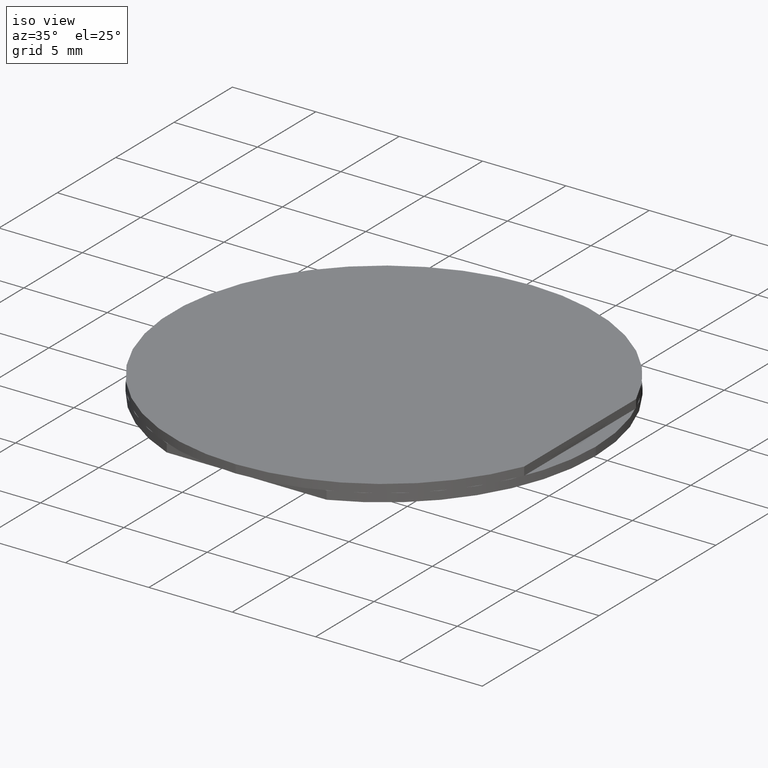
[diagram: clean part render]
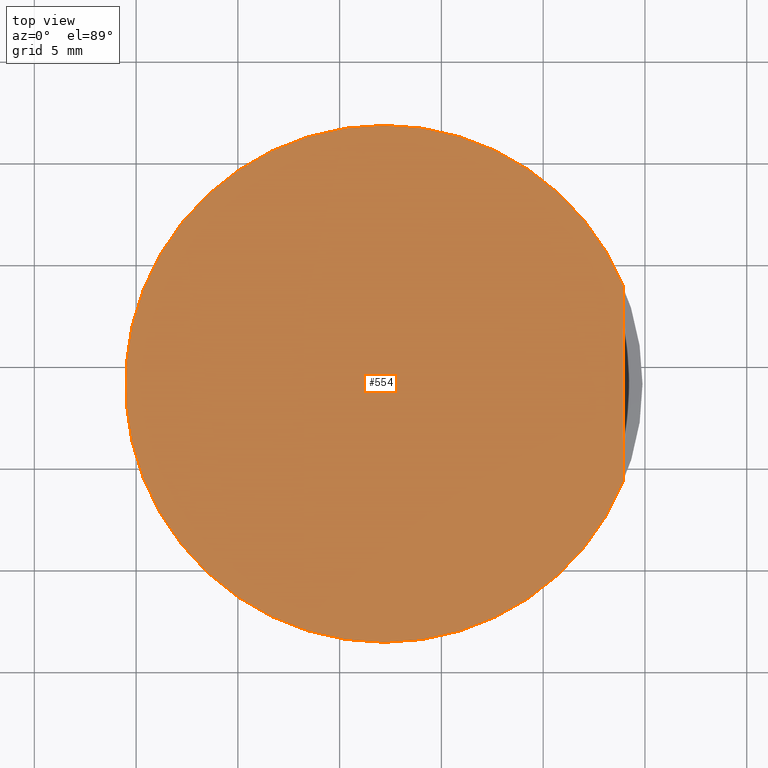
[diagram: tour spotlight — one face highlighted and labeled with its STEP entity id]
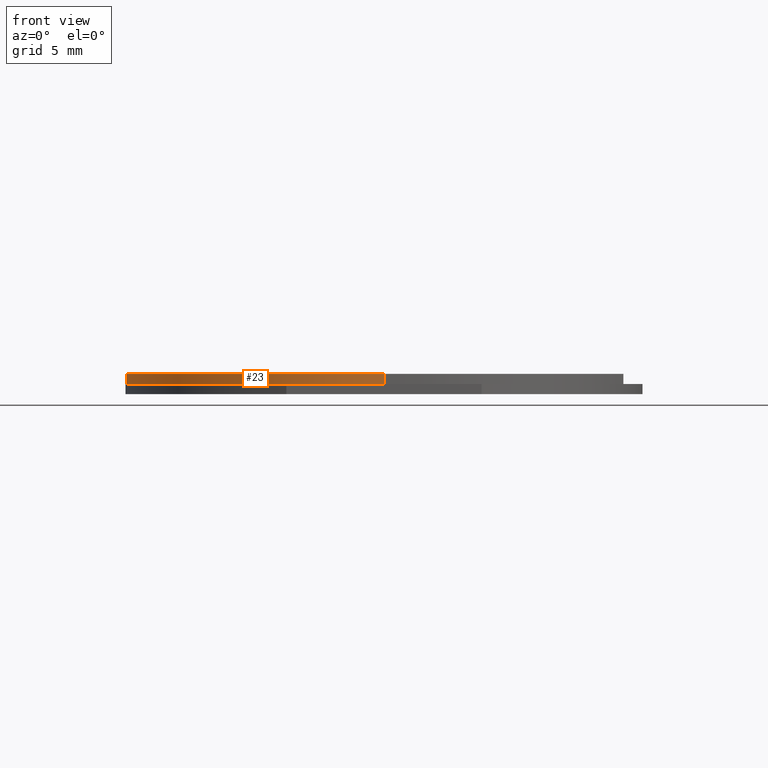
[diagram: tour spotlight — one face highlighted and labeled with its STEP entity id]
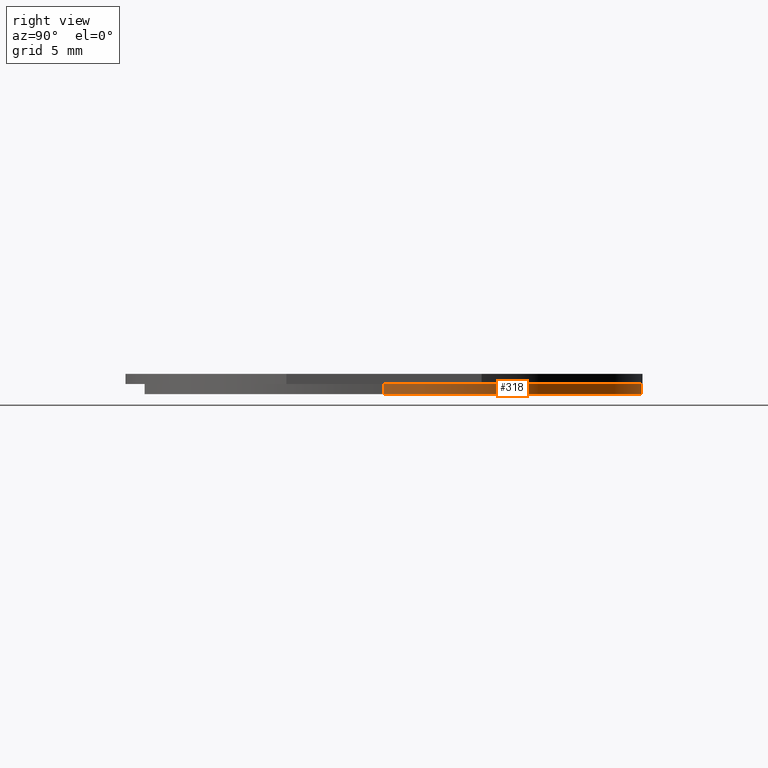
[diagram: tour spotlight — one face highlighted and labeled with its STEP entity id]
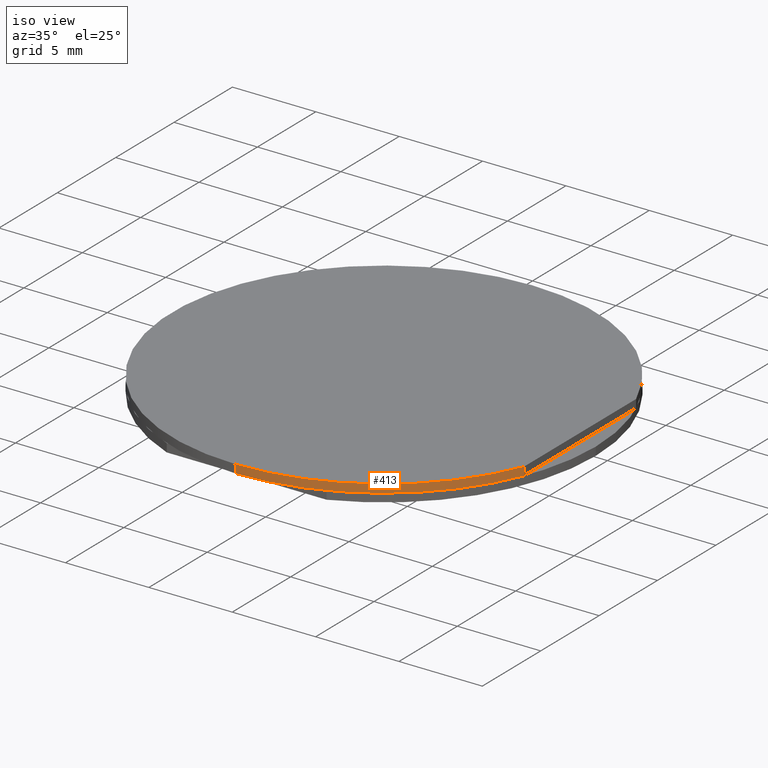
[diagram: tour spotlight — one face highlighted and labeled with its STEP entity id]
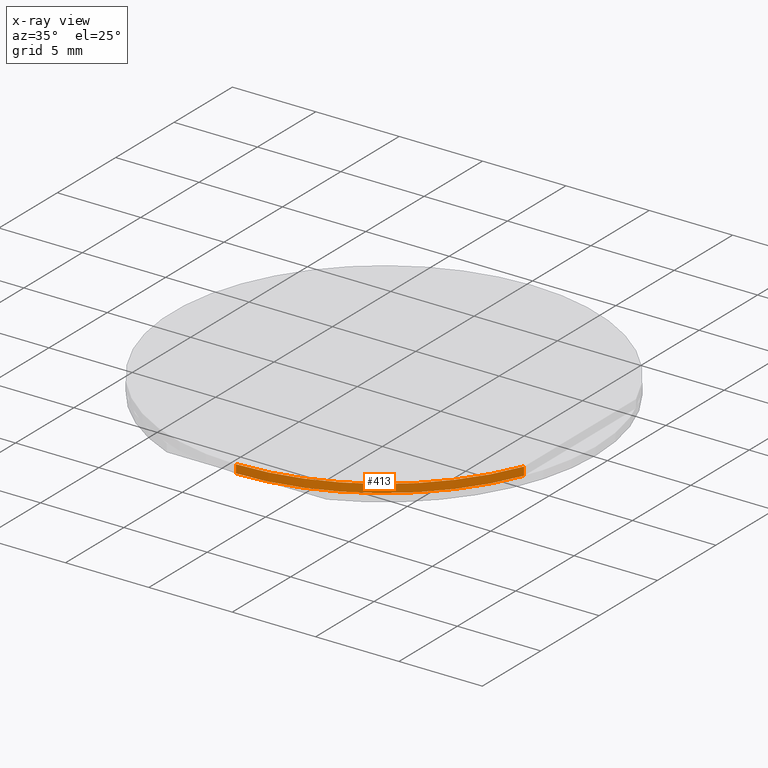
[diagram: x-ray of the same camera — body ghosted, this tour face saturated]
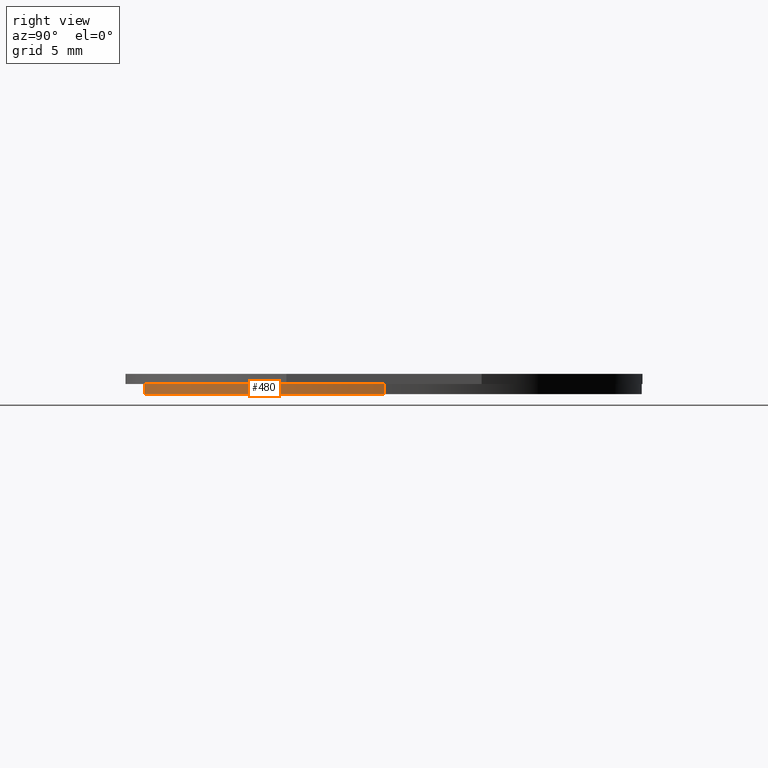
[diagram: tour spotlight — one face highlighted and labeled with its STEP entity id]
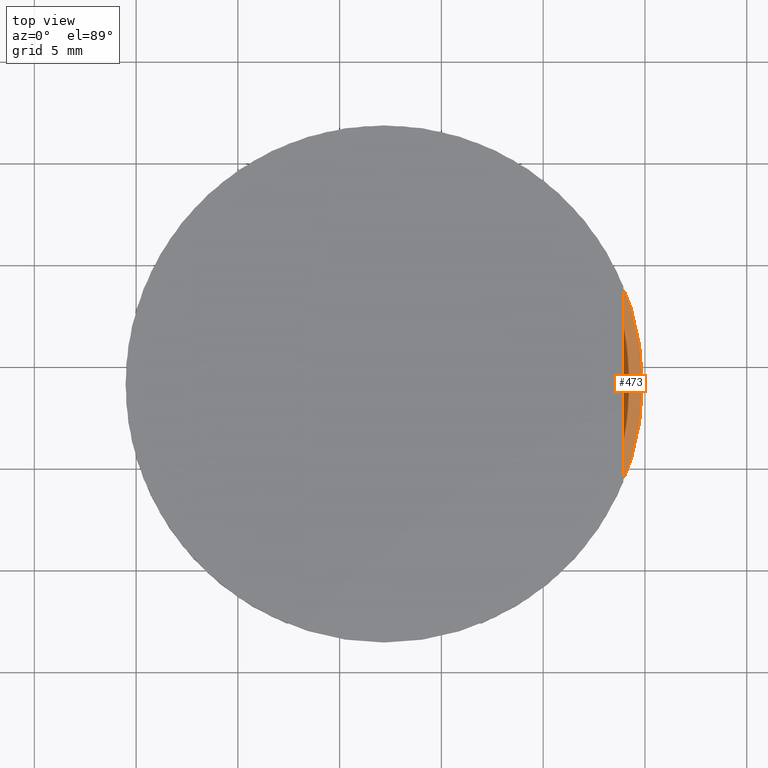
[diagram: tour spotlight — one face highlighted and labeled with its STEP entity id]
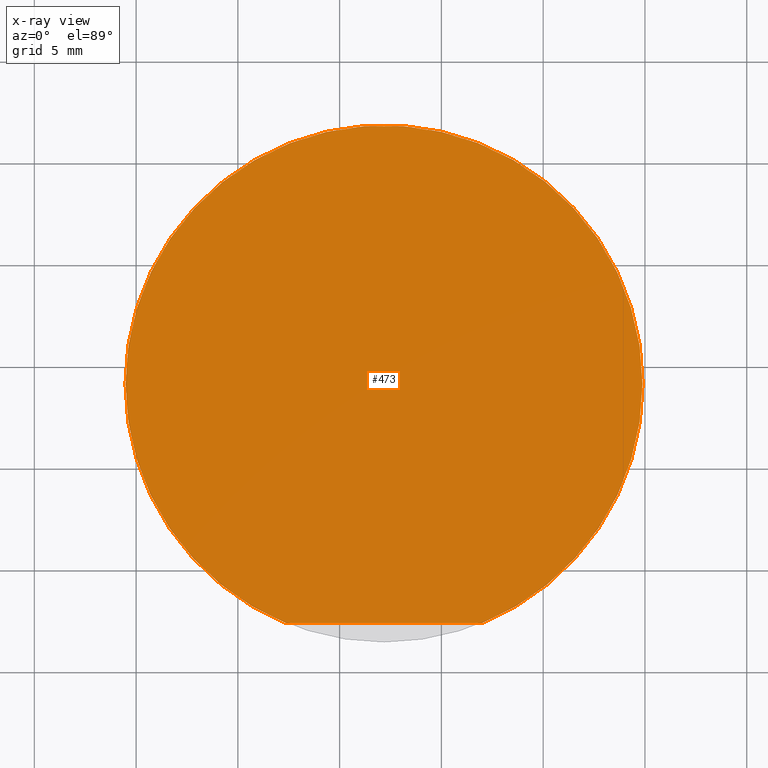
[diagram: x-ray of the same camera — body ghosted, this tour face saturated]
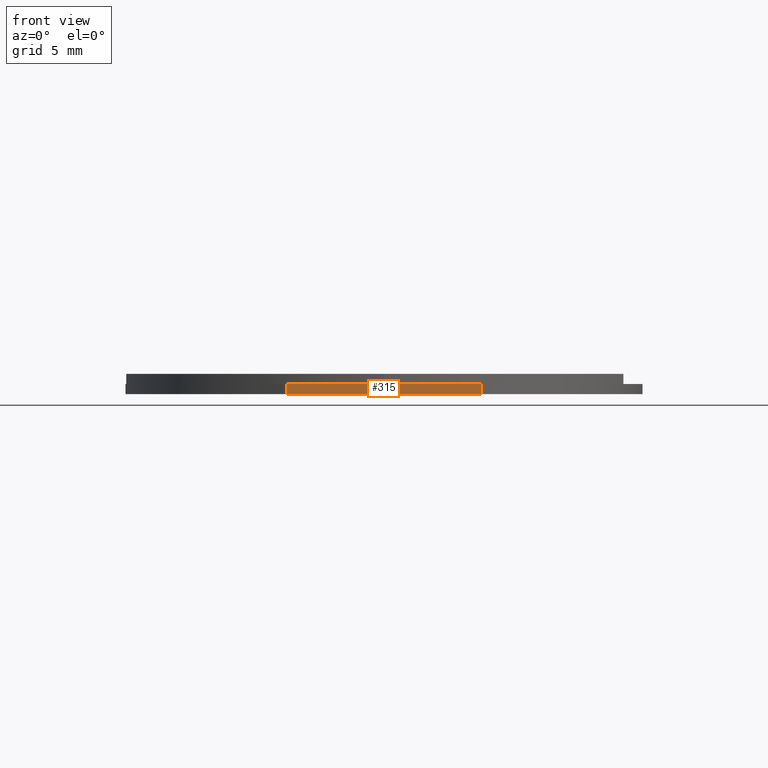
[diagram: tour spotlight — one face highlighted and labeled with its STEP entity id]
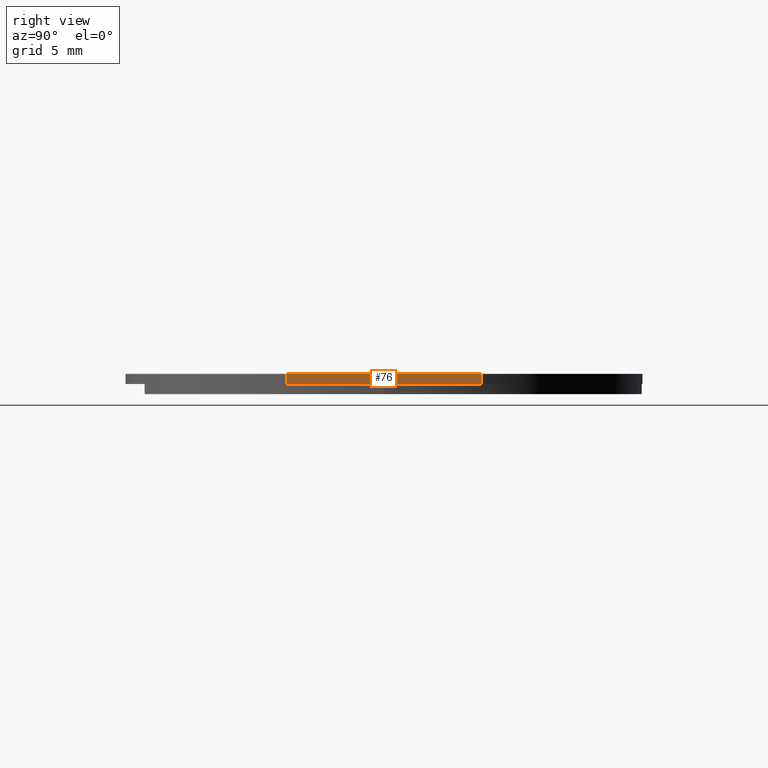
[diagram: tour spotlight — one face highlighted and labeled with its STEP entity id]
A machine part: a face-by-face anatomy tour. The part has 12 B-rep faces; the first image is the clean iso view, then the 8 largest visible faces are spotlighted one at a time (largest first), each with its STEP entity span.

Face 1 — top view, entity #554. In plain terms, the highlighted planar face has unit normal (0, -0, 1).
Definition (entity closure, byte-faithful):
#3 = VERTEX_POINT ( 'NONE', #303 ) ;
#17 = CARTESIAN_POINT ( 'NONE',  ( 12.17957565082418014, -0.8299026143560144231, 4.486184743181586221 ) ) ;
#18 = CARTESIAN_POINT ( 'NONE',  ( 12.17957565082418014, -0.8299026143560144231, 4.486184743181586221 ) ) ;
#20 = DIRECTION ( 'NONE',  ( 0.0000000000000000000, 0.0000000000000000000, 1.000000000000000000 ) ) ;
#33 = EDGE_CURVE ( 'NONE', #172, #124, #177, .T. ) ;
#61 = DIRECTION ( 'NONE',  ( 0.0000000000000000000, 0.0000000000000000000, 1.000000000000000000 ) ) ;
#89 = DIRECTION ( 'NONE',  ( 1.110223024625156294E-16, 1.000000000000000000, 0.0000000000000000000 ) ) ;
#124 = VERTEX_POINT ( 'NONE', #195 ) ;
#172 = VERTEX_POINT ( 'NONE', #433 ) ;
#177 = LINE ( 'NONE', #346, #487 ) ;
#178 = EDGE_CURVE ( 'NONE', #334, #124, #427, .T. ) ;
#187 = DIRECTION ( 'NONE',  ( 1.365923996832131609E-16, 1.000000000000000000, 0.0000000000000000000 ) ) ;
#195 = CARTESIAN_POINT ( 'NONE',  ( 23.93957565082418171, -5.624941717429107868, 4.486184743181586221 ) ) ;
#201 = AXIS2_PLACEMENT_3D ( 'NONE', #18, #61, #327 ) ;
#213 = DIRECTION ( 'NONE',  ( 0.0000000000000000000, -0.0000000000000000000, 1.000000000000000000 ) ) ;
#218 = EDGE_CURVE ( 'NONE', #172, #3, #513, .T. ) ;
#219 = CIRCLE ( 'NONE', #527, 12.69999999999999929 ) ;
#228 = AXIS2_PLACEMENT_3D ( 'NONE', #535, #436, #321 ) ;
#229 = CARTESIAN_POINT ( 'NONE',  ( 12.17957565082417837, -13.52990261435601305, 4.486184743181586221 ) ) ;
#252 = PLANE ( 'NONE',  #511 ) ;
#253 = ORIENTED_EDGE ( 'NONE', *, *, #369, .T. ) ;
#296 = CARTESIAN_POINT ( 'NONE',  ( 12.17957565082418014, -0.8299026143560144231, 4.486184743181586221 ) ) ;
#303 = CARTESIAN_POINT ( 'NONE',  ( 12.17957565082418014, 11.87009738564398553, 4.486184743181586221 ) ) ;
#321 = DIRECTION ( 'NONE',  ( 1.365923996832131609E-16, 1.000000000000000000, 0.0000000000000000000 ) ) ;
#327 = DIRECTION ( 'NONE',  ( 1.365923996832131609E-16, 1.000000000000000000, 0.0000000000000000000 ) ) ;
#334 = VERTEX_POINT ( 'NONE', #229 ) ;
#346 = CARTESIAN_POINT ( 'NONE',  ( 23.93957565082418171, -6.717240688047030339, 4.486184743181586221 ) ) ;
#369 = EDGE_CURVE ( 'NONE', #3, #334, #219, .T. ) ;
#370 = EDGE_LOOP ( 'NONE', ( #381, #378, #253, #407 ) ) ;
#378 = ORIENTED_EDGE ( 'NONE', *, *, #218, .T. ) ;
#379 = FACE_OUTER_BOUND ( 'NONE', #370, .T. ) ;
#381 = ORIENTED_EDGE ( 'NONE', *, *, #33, .F. ) ;
#386 = DIRECTION ( 'NONE',  ( -1.110223024625156294E-16, -1.000000000000000000, -0.0000000000000000000 ) ) ;
#407 = ORIENTED_EDGE ( 'NONE', *, *, #178, .T. ) ;
#427 = CIRCLE ( 'NONE', #201, 12.69999999999999929 ) ;
#433 = CARTESIAN_POINT ( 'NONE',  ( 23.93957565082418171, 3.965136488717076357, 4.486184743181586221 ) ) ;
#436 = DIRECTION ( 'NONE',  ( 0.0000000000000000000, 0.0000000000000000000, 1.000000000000000000 ) ) ;
#487 = VECTOR ( 'NONE', #386, 1000.000000000000000 ) ;
#511 = AXIS2_PLACEMENT_3D ( 'NONE', #296, #213, #89 ) ;
#513 = CIRCLE ( 'NONE', #228, 12.69999999999999929 ) ;
#527 = AXIS2_PLACEMENT_3D ( 'NONE', #17, #20, #187 ) ;
#535 = CARTESIAN_POINT ( 'NONE',  ( 12.17957565082418014, -0.8299026143560144231, 4.486184743181586221 ) ) ;
#554 = ADVANCED_FACE ( 'NONE', ( #379 ), #252, .T. ) ;

Face 2 — front view, entity #23. In plain terms, the highlighted cylindrical surface (partial cylindrical patch) has radius 12.7 mm, axis along (0, -0, -1).
Definition (entity closure, byte-faithful):
#3 = VERTEX_POINT ( 'NONE', #303 ) ;
#17 = CARTESIAN_POINT ( 'NONE',  ( 12.17957565082418014, -0.8299026143560144231, 4.486184743181586221 ) ) ;
#20 = DIRECTION ( 'NONE',  ( 0.0000000000000000000, 0.0000000000000000000, 1.000000000000000000 ) ) ;
#23 = ADVANCED_FACE ( 'NONE', ( #385 ), #222, .T. ) ;
#24 = DIRECTION ( 'NONE',  ( 0.0000000000000000000, -0.0000000000000000000, -1.000000000000000000 ) ) ;
#30 = DIRECTION ( 'NONE',  ( 0.0000000000000000000, 0.0000000000000000000, 1.000000000000000000 ) ) ;
#37 = VERTEX_POINT ( 'NONE', #345 ) ;
#88 = ORIENTED_EDGE ( 'NONE', *, *, #369, .F. ) ;
#95 = DIRECTION ( 'NONE',  ( 0.0000000000000000000, -0.0000000000000000000, -1.000000000000000000 ) ) ;
#118 = CARTESIAN_POINT ( 'NONE',  ( 12.17957565082418014, 11.87009738564398553, 4.486184743181586221 ) ) ;
#187 = DIRECTION ( 'NONE',  ( 1.365923996832131609E-16, 1.000000000000000000, 0.0000000000000000000 ) ) ;
#215 = VERTEX_POINT ( 'NONE', #360 ) ;
#219 = CIRCLE ( 'NONE', #527, 12.69999999999999929 ) ;
#222 = CYLINDRICAL_SURFACE ( 'NONE', #342, 12.69999999999999929 ) ;
#224 = DIRECTION ( 'NONE',  ( -1.365923996832131609E-16, -1.000000000000000000, 0.0000000000000000000 ) ) ;
#229 = CARTESIAN_POINT ( 'NONE',  ( 12.17957565082417837, -13.52990261435601305, 4.486184743181586221 ) ) ;
#230 = LINE ( 'NONE', #311, #438 ) ;
#244 = ORIENTED_EDGE ( 'NONE', *, *, #277, .T. ) ;
#256 = ORIENTED_EDGE ( 'NONE', *, *, #518, .T. ) ;
#269 = VECTOR ( 'NONE', #24, 1000.000000000000000 ) ;
#277 = EDGE_CURVE ( 'NONE', #3, #215, #493, .T. ) ;
#289 = CIRCLE ( 'NONE', #486, 12.69999999999999929 ) ;
#303 = CARTESIAN_POINT ( 'NONE',  ( 12.17957565082418014, 11.87009738564398553, 4.486184743181586221 ) ) ;
#305 = CARTESIAN_POINT ( 'NONE',  ( 12.17957565082418014, -0.8299026143560144231, 4.486184743181586221 ) ) ;
#311 = CARTESIAN_POINT ( 'NONE',  ( 12.17957565082417837, -13.52990261435601305, 4.486184743181586221 ) ) ;
#314 = DIRECTION ( 'NONE',  ( 0.0000000000000000000, -0.0000000000000000000, -1.000000000000000000 ) ) ;
#334 = VERTEX_POINT ( 'NONE', #229 ) ;
#342 = AXIS2_PLACEMENT_3D ( 'NONE', #305, #95, #224 ) ;
#345 = CARTESIAN_POINT ( 'NONE',  ( 12.17957565082417837, -13.52990261435601305, 3.986184743181585777 ) ) ;
#351 = EDGE_CURVE ( 'NONE', #334, #37, #230, .T. ) ;
#357 = DIRECTION ( 'NONE',  ( 1.365923996832131609E-16, 1.000000000000000000, 0.0000000000000000000 ) ) ;
#360 = CARTESIAN_POINT ( 'NONE',  ( 12.17957565082418014, 11.87009738564398553, 3.986184743181585777 ) ) ;
#369 = EDGE_CURVE ( 'NONE', #3, #334, #219, .T. ) ;
#385 = FACE_OUTER_BOUND ( 'NONE', #504, .T. ) ;
#438 = VECTOR ( 'NONE', #314, 1000.000000000000000 ) ;
#486 = AXIS2_PLACEMENT_3D ( 'NONE', #557, #30, #357 ) ;
#493 = LINE ( 'NONE', #118, #269 ) ;
#504 = EDGE_LOOP ( 'NONE', ( #88, #244, #256, #555 ) ) ;
#518 = EDGE_CURVE ( 'NONE', #215, #37, #289, .T. ) ;
#527 = AXIS2_PLACEMENT_3D ( 'NONE', #17, #20, #187 ) ;
#555 = ORIENTED_EDGE ( 'NONE', *, *, #351, .F. ) ;
#557 = CARTESIAN_POINT ( 'NONE',  ( 12.17957565082418014, -0.8299026143560144231, 3.986184743181585777 ) ) ;

Face 3 — right view, entity #318. In plain terms, the highlighted cylindrical surface (partial cylindrical patch) has radius 12.7 mm, axis along (-0, -0, -1).
Definition (entity closure, byte-faithful):
#21 = CARTESIAN_POINT ( 'NONE',  ( 24.87957565082417943, -0.8299026143560128688, 3.986184743181585777 ) ) ;
#55 = CIRCLE ( 'NONE', #543, 12.69999999999999929 ) ;
#58 = DIRECTION ( 'NONE',  ( -0.0000000000000000000, -0.0000000000000000000, -1.000000000000000000 ) ) ;
#59 = VECTOR ( 'NONE', #544, 1000.000000000000000 ) ;
#70 = DIRECTION ( 'NONE',  ( 0.0000000000000000000, 0.0000000000000000000, 1.000000000000000000 ) ) ;
#72 = CIRCLE ( 'NONE', #144, 12.69999999999999929 ) ;
#110 = DIRECTION ( 'NONE',  ( -1.000000000000000000, 0.0000000000000000000, 0.0000000000000000000 ) ) ;
#121 = EDGE_LOOP ( 'NONE', ( #137, #419, #243, #546 ) ) ;
#137 = ORIENTED_EDGE ( 'NONE', *, *, #322, .F. ) ;
#144 = AXIS2_PLACEMENT_3D ( 'NONE', #395, #538, #196 ) ;
#145 = CARTESIAN_POINT ( 'NONE',  ( 12.17957565082418014, -0.8299026143560144231, 3.986184743181585777 ) ) ;
#170 = CARTESIAN_POINT ( 'NONE',  ( -0.5204243491758187012, -0.8299026143560144231, 3.986184743181585777 ) ) ;
#194 = DIRECTION ( 'NONE',  ( -0.0000000000000000000, -0.0000000000000000000, -1.000000000000000000 ) ) ;
#196 = DIRECTION ( 'NONE',  ( 1.000000000000000000, 0.0000000000000000000, 0.0000000000000000000 ) ) ;
#203 = LINE ( 'NONE', #21, #59 ) ;
#226 = EDGE_CURVE ( 'NONE', #500, #295, #55, .T. ) ;
#243 = ORIENTED_EDGE ( 'NONE', *, *, #226, .T. ) ;
#268 = CARTESIAN_POINT ( 'NONE',  ( 24.87957565082417943, -0.8299026143560128688, 3.986184743181585777 ) ) ;
#283 = VECTOR ( 'NONE', #194, 1000.000000000000000 ) ;
#286 = CARTESIAN_POINT ( 'NONE',  ( 24.87957565082417943, -0.8299026143560128688, 3.486184743181585333 ) ) ;
#295 = VERTEX_POINT ( 'NONE', #333 ) ;
#318 = ADVANCED_FACE ( 'NONE', ( #548 ), #329, .T. ) ;
#322 = EDGE_CURVE ( 'NONE', #383, #551, #72, .T. ) ;
#329 = CYLINDRICAL_SURFACE ( 'NONE', #382, 12.69999999999999929 ) ;
#333 = CARTESIAN_POINT ( 'NONE',  ( -0.5204243491758187012, -0.8299026143560144231, 3.486184743181585333 ) ) ;
#382 = AXIS2_PLACEMENT_3D ( 'NONE', #145, #58, #110 ) ;
#383 = VERTEX_POINT ( 'NONE', #268 ) ;
#395 = CARTESIAN_POINT ( 'NONE',  ( 12.17957565082418014, -0.8299026143560144231, 3.986184743181585777 ) ) ;
#401 = DIRECTION ( 'NONE',  ( 1.000000000000000000, 0.0000000000000000000, 0.0000000000000000000 ) ) ;
#402 = EDGE_CURVE ( 'NONE', #551, #295, #488, .T. ) ;
#419 = ORIENTED_EDGE ( 'NONE', *, *, #450, .T. ) ;
#450 = EDGE_CURVE ( 'NONE', #383, #500, #203, .T. ) ;
#479 = CARTESIAN_POINT ( 'NONE',  ( -0.5204243491758187012, -0.8299026143560144231, 3.986184743181585777 ) ) ;
#485 = CARTESIAN_POINT ( 'NONE',  ( 12.17957565082418014, -0.8299026143560144231, 3.486184743181585333 ) ) ;
#488 = LINE ( 'NONE', #479, #283 ) ;
#500 = VERTEX_POINT ( 'NONE', #286 ) ;
#538 = DIRECTION ( 'NONE',  ( 0.0000000000000000000, 0.0000000000000000000, 1.000000000000000000 ) ) ;
#543 = AXIS2_PLACEMENT_3D ( 'NONE', #485, #70, #401 ) ;
#544 = DIRECTION ( 'NONE',  ( -0.0000000000000000000, -0.0000000000000000000, -1.000000000000000000 ) ) ;
#546 = ORIENTED_EDGE ( 'NONE', *, *, #402, .F. ) ;
#548 = FACE_OUTER_BOUND ( 'NONE', #121, .T. ) ;
#551 = VERTEX_POINT ( 'NONE', #170 ) ;

Face 4 — iso view, entity #413. An x-ray twin of the same camera follows (body ghosted, this face saturated) — the face is partly hidden behind the body. In plain terms, the highlighted cylindrical surface (partial cylindrical patch) has radius 12.7 mm, axis along (0, -0, -1).
Definition (entity closure, byte-faithful):
#18 = CARTESIAN_POINT ( 'NONE',  ( 12.17957565082418014, -0.8299026143560144231, 4.486184743181586221 ) ) ;
#25 = CYLINDRICAL_SURFACE ( 'NONE', #237, 12.69999999999999929 ) ;
#26 = CARTESIAN_POINT ( 'NONE',  ( 12.17957565082418014, -0.8299026143560144231, 3.986184743181585777 ) ) ;
#34 = ORIENTED_EDGE ( 'NONE', *, *, #255, .T. ) ;
#37 = VERTEX_POINT ( 'NONE', #345 ) ;
#61 = DIRECTION ( 'NONE',  ( 0.0000000000000000000, 0.0000000000000000000, 1.000000000000000000 ) ) ;
#82 = CARTESIAN_POINT ( 'NONE',  ( 23.93957565082418171, -5.624941717429107868, 4.486184743181586221 ) ) ;
#124 = VERTEX_POINT ( 'NONE', #195 ) ;
#125 = EDGE_LOOP ( 'NONE', ( #411, #174, #34, #373 ) ) ;
#157 = DIRECTION ( 'NONE',  ( 1.365923996832131609E-16, 1.000000000000000000, 0.0000000000000000000 ) ) ;
#174 = ORIENTED_EDGE ( 'NONE', *, *, #351, .T. ) ;
#178 = EDGE_CURVE ( 'NONE', #334, #124, #427, .T. ) ;
#191 = FACE_OUTER_BOUND ( 'NONE', #125, .T. ) ;
#195 = CARTESIAN_POINT ( 'NONE',  ( 23.93957565082418171, -5.624941717429107868, 4.486184743181586221 ) ) ;
#198 = DIRECTION ( 'NONE',  ( -1.365923996832131609E-16, -1.000000000000000000, 0.0000000000000000000 ) ) ;
#201 = AXIS2_PLACEMENT_3D ( 'NONE', #18, #61, #327 ) ;
#229 = CARTESIAN_POINT ( 'NONE',  ( 12.17957565082417837, -13.52990261435601305, 4.486184743181586221 ) ) ;
#230 = LINE ( 'NONE', #311, #438 ) ;
#237 = AXIS2_PLACEMENT_3D ( 'NONE', #276, #284, #198 ) ;
#255 = EDGE_CURVE ( 'NONE', #37, #461, #514, .T. ) ;
#276 = CARTESIAN_POINT ( 'NONE',  ( 12.17957565082418014, -0.8299026143560144231, 4.486184743181586221 ) ) ;
#284 = DIRECTION ( 'NONE',  ( 0.0000000000000000000, -0.0000000000000000000, -1.000000000000000000 ) ) ;
#310 = EDGE_CURVE ( 'NONE', #461, #124, #336, .T. ) ;
#311 = CARTESIAN_POINT ( 'NONE',  ( 12.17957565082417837, -13.52990261435601305, 4.486184743181586221 ) ) ;
#314 = DIRECTION ( 'NONE',  ( 0.0000000000000000000, -0.0000000000000000000, -1.000000000000000000 ) ) ;
#327 = DIRECTION ( 'NONE',  ( 1.365923996832131609E-16, 1.000000000000000000, 0.0000000000000000000 ) ) ;
#334 = VERTEX_POINT ( 'NONE', #229 ) ;
#336 = LINE ( 'NONE', #82, #459 ) ;
#345 = CARTESIAN_POINT ( 'NONE',  ( 12.17957565082417837, -13.52990261435601305, 3.986184743181585777 ) ) ;
#351 = EDGE_CURVE ( 'NONE', #334, #37, #230, .T. ) ;
#365 = AXIS2_PLACEMENT_3D ( 'NONE', #26, #366, #157 ) ;
#366 = DIRECTION ( 'NONE',  ( 0.0000000000000000000, 0.0000000000000000000, 1.000000000000000000 ) ) ;
#373 = ORIENTED_EDGE ( 'NONE', *, *, #310, .T. ) ;
#411 = ORIENTED_EDGE ( 'NONE', *, *, #178, .F. ) ;
#413 = ADVANCED_FACE ( 'NONE', ( #191 ), #25, .T. ) ;
#427 = CIRCLE ( 'NONE', #201, 12.69999999999999929 ) ;
#438 = VECTOR ( 'NONE', #314, 1000.000000000000000 ) ;
#445 = DIRECTION ( 'NONE',  ( -0.0000000000000000000, 0.0000000000000000000, 1.000000000000000000 ) ) ;
#459 = VECTOR ( 'NONE', #445, 1000.000000000000000 ) ;
#461 = VERTEX_POINT ( 'NONE', #492 ) ;
#492 = CARTESIAN_POINT ( 'NONE',  ( 23.93957565082418171, -5.624941717429107868, 3.986184743181585777 ) ) ;
#514 = CIRCLE ( 'NONE', #365, 12.69999999999999929 ) ;

Face 5 — right view, entity #480. In plain terms, the highlighted cylindrical surface (partial cylindrical patch) has radius 12.7 mm, axis along (-0, -0, -1).
Definition (entity closure, byte-faithful):
#1 = DIRECTION ( 'NONE',  ( 1.000000000000000000, 0.0000000000000000000, 0.0000000000000000000 ) ) ;
#21 = CARTESIAN_POINT ( 'NONE',  ( 24.87957565082417943, -0.8299026143560128688, 3.986184743181585777 ) ) ;
#32 = DIRECTION ( 'NONE',  ( -1.000000000000000000, 0.0000000000000000000, 0.0000000000000000000 ) ) ;
#36 = EDGE_CURVE ( 'NONE', #44, #383, #559, .T. ) ;
#39 = VECTOR ( 'NONE', #156, 1000.000000000000000 ) ;
#44 = VERTEX_POINT ( 'NONE', #350 ) ;
#59 = VECTOR ( 'NONE', #544, 1000.000000000000000 ) ;
#71 = CYLINDRICAL_SURFACE ( 'NONE', #323, 12.69999999999999929 ) ;
#73 = CARTESIAN_POINT ( 'NONE',  ( 12.17957565082418014, -0.8299026143560144231, 3.486184743181585333 ) ) ;
#127 = ORIENTED_EDGE ( 'NONE', *, *, #297, .T. ) ;
#132 = CIRCLE ( 'NONE', #154, 12.69999999999999929 ) ;
#154 = AXIS2_PLACEMENT_3D ( 'NONE', #73, #491, #440 ) ;
#156 = DIRECTION ( 'NONE',  ( -0.0000000000000000000, -0.0000000000000000000, -1.000000000000000000 ) ) ;
#160 = EDGE_LOOP ( 'NONE', ( #341, #446, #496, #127 ) ) ;
#180 = CARTESIAN_POINT ( 'NONE',  ( 12.17957565082418014, -0.8299026143560144231, 3.986184743181585777 ) ) ;
#203 = LINE ( 'NONE', #21, #59 ) ;
#220 = DIRECTION ( 'NONE',  ( 0.0000000000000000000, 0.0000000000000000000, 1.000000000000000000 ) ) ;
#235 = CARTESIAN_POINT ( 'NONE',  ( 12.17957565082418014, -0.8299026143560144231, 3.986184743181585777 ) ) ;
#268 = CARTESIAN_POINT ( 'NONE',  ( 24.87957565082417943, -0.8299026143560128688, 3.986184743181585777 ) ) ;
#286 = CARTESIAN_POINT ( 'NONE',  ( 24.87957565082417943, -0.8299026143560128688, 3.486184743181585333 ) ) ;
#297 = EDGE_CURVE ( 'NONE', #507, #500, #132, .T. ) ;
#323 = AXIS2_PLACEMENT_3D ( 'NONE', #235, #405, #32 ) ;
#325 = LINE ( 'NONE', #489, #39 ) ;
#341 = ORIENTED_EDGE ( 'NONE', *, *, #450, .F. ) ;
#350 = CARTESIAN_POINT ( 'NONE',  ( 16.97461475389727426, -12.58990261435601354, 3.986184743181585777 ) ) ;
#383 = VERTEX_POINT ( 'NONE', #268 ) ;
#405 = DIRECTION ( 'NONE',  ( -0.0000000000000000000, -0.0000000000000000000, -1.000000000000000000 ) ) ;
#440 = DIRECTION ( 'NONE',  ( 1.000000000000000000, 0.0000000000000000000, 0.0000000000000000000 ) ) ;
#444 = AXIS2_PLACEMENT_3D ( 'NONE', #180, #220, #1 ) ;
#446 = ORIENTED_EDGE ( 'NONE', *, *, #36, .F. ) ;
#450 = EDGE_CURVE ( 'NONE', #383, #500, #203, .T. ) ;
#451 = EDGE_CURVE ( 'NONE', #44, #507, #325, .T. ) ;
#480 = ADVANCED_FACE ( 'NONE', ( #536 ), #71, .T. ) ;
#489 = CARTESIAN_POINT ( 'NONE',  ( 16.97461475389727426, -12.58990261435601354, 3.986184743181585777 ) ) ;
#491 = DIRECTION ( 'NONE',  ( 0.0000000000000000000, 0.0000000000000000000, 1.000000000000000000 ) ) ;
#496 = ORIENTED_EDGE ( 'NONE', *, *, #451, .T. ) ;
#500 = VERTEX_POINT ( 'NONE', #286 ) ;
#507 = VERTEX_POINT ( 'NONE', #547 ) ;
#536 = FACE_OUTER_BOUND ( 'NONE', #160, .T. ) ;
#544 = DIRECTION ( 'NONE',  ( -0.0000000000000000000, -0.0000000000000000000, -1.000000000000000000 ) ) ;
#547 = CARTESIAN_POINT ( 'NONE',  ( 16.97461475389727426, -12.58990261435601354, 3.486184743181585333 ) ) ;
#559 = CIRCLE ( 'NONE', #444, 12.69999999999999929 ) ;

Face 6 — top view, entity #473. An x-ray twin of the same camera follows (body ghosted, this face saturated) — the face is partly hidden behind the body. In plain terms, the highlighted planar face has unit normal (0, 0, 1).
Definition (entity closure, byte-faithful):
#1 = DIRECTION ( 'NONE',  ( 1.000000000000000000, 0.0000000000000000000, 0.0000000000000000000 ) ) ;
#13 = PLANE ( 'NONE',  #164 ) ;
#36 = EDGE_CURVE ( 'NONE', #44, #383, #559, .T. ) ;
#43 = EDGE_CURVE ( 'NONE', #44, #133, #136, .T. ) ;
#44 = VERTEX_POINT ( 'NONE', #350 ) ;
#56 = DIRECTION ( 'NONE',  ( 0.0000000000000000000, 0.0000000000000000000, 1.000000000000000000 ) ) ;
#62 = CIRCLE ( 'NONE', #249, 12.69999999999999929 ) ;
#65 = EDGE_CURVE ( 'NONE', #551, #133, #62, .T. ) ;
#72 = CIRCLE ( 'NONE', #144, 12.69999999999999929 ) ;
#85 = ORIENTED_EDGE ( 'NONE', *, *, #36, .T. ) ;
#92 = CARTESIAN_POINT ( 'NONE',  ( 6.292237577133167115, -12.58990261435601354, 3.986184743181585777 ) ) ;
#130 = ORIENTED_EDGE ( 'NONE', *, *, #65, .T. ) ;
#133 = VERTEX_POINT ( 'NONE', #393 ) ;
#136 = LINE ( 'NONE', #92, #324 ) ;
#144 = AXIS2_PLACEMENT_3D ( 'NONE', #395, #538, #196 ) ;
#158 = DIRECTION ( 'NONE',  ( 1.000000000000000000, 0.0000000000000000000, -0.0000000000000000000 ) ) ;
#164 = AXIS2_PLACEMENT_3D ( 'NONE', #388, #282, #158 ) ;
#169 = ORIENTED_EDGE ( 'NONE', *, *, #322, .T. ) ;
#170 = CARTESIAN_POINT ( 'NONE',  ( -0.5204243491758187012, -0.8299026143560144231, 3.986184743181585777 ) ) ;
#180 = CARTESIAN_POINT ( 'NONE',  ( 12.17957565082418014, -0.8299026143560144231, 3.986184743181585777 ) ) ;
#196 = DIRECTION ( 'NONE',  ( 1.000000000000000000, 0.0000000000000000000, 0.0000000000000000000 ) ) ;
#220 = DIRECTION ( 'NONE',  ( 0.0000000000000000000, 0.0000000000000000000, 1.000000000000000000 ) ) ;
#223 = CARTESIAN_POINT ( 'NONE',  ( 12.17957565082418014, -0.8299026143560144231, 3.986184743181585777 ) ) ;
#249 = AXIS2_PLACEMENT_3D ( 'NONE', #223, #56, #474 ) ;
#267 = FACE_OUTER_BOUND ( 'NONE', #556, .T. ) ;
#268 = CARTESIAN_POINT ( 'NONE',  ( 24.87957565082417943, -0.8299026143560128688, 3.986184743181585777 ) ) ;
#282 = DIRECTION ( 'NONE',  ( 0.0000000000000000000, 0.0000000000000000000, 1.000000000000000000 ) ) ;
#299 = ORIENTED_EDGE ( 'NONE', *, *, #43, .F. ) ;
#322 = EDGE_CURVE ( 'NONE', #383, #551, #72, .T. ) ;
#324 = VECTOR ( 'NONE', #426, 1000.000000000000000 ) ;
#350 = CARTESIAN_POINT ( 'NONE',  ( 16.97461475389727426, -12.58990261435601354, 3.986184743181585777 ) ) ;
#383 = VERTEX_POINT ( 'NONE', #268 ) ;
#388 = CARTESIAN_POINT ( 'NONE',  ( 12.17957565082418014, -0.8299026143560144231, 3.986184743181585777 ) ) ;
#393 = CARTESIAN_POINT ( 'NONE',  ( 7.384536547751088698, -12.58990261435601354, 3.986184743181585777 ) ) ;
#395 = CARTESIAN_POINT ( 'NONE',  ( 12.17957565082418014, -0.8299026143560144231, 3.986184743181585777 ) ) ;
#426 = DIRECTION ( 'NONE',  ( -1.000000000000000000, -0.0000000000000000000, -0.0000000000000000000 ) ) ;
#444 = AXIS2_PLACEMENT_3D ( 'NONE', #180, #220, #1 ) ;
#473 = ADVANCED_FACE ( 'NONE', ( #267 ), #13, .T. ) ;
#474 = DIRECTION ( 'NONE',  ( 1.000000000000000000, 0.0000000000000000000, 0.0000000000000000000 ) ) ;
#538 = DIRECTION ( 'NONE',  ( 0.0000000000000000000, 0.0000000000000000000, 1.000000000000000000 ) ) ;
#551 = VERTEX_POINT ( 'NONE', #170 ) ;
#556 = EDGE_LOOP ( 'NONE', ( #299, #85, #169, #130 ) ) ;
#559 = CIRCLE ( 'NONE', #444, 12.69999999999999929 ) ;

Face 7 — front view, entity #315. In plain terms, the highlighted planar face has unit normal (-0, 1, 0).
Definition (entity closure, byte-faithful):
#39 = VECTOR ( 'NONE', #156, 1000.000000000000000 ) ;
#43 = EDGE_CURVE ( 'NONE', #44, #133, #136, .T. ) ;
#44 = VERTEX_POINT ( 'NONE', #350 ) ;
#63 = LINE ( 'NONE', #374, #275 ) ;
#69 = CARTESIAN_POINT ( 'NONE',  ( 12.17957565082418014, -12.58990261435601354, 3.486184743181585333 ) ) ;
#84 = DIRECTION ( 'NONE',  ( 0.0000000000000000000, 0.0000000000000000000, 1.000000000000000000 ) ) ;
#92 = CARTESIAN_POINT ( 'NONE',  ( 6.292237577133167115, -12.58990261435601354, 3.986184743181585777 ) ) ;
#114 = LINE ( 'NONE', #69, #182 ) ;
#133 = VERTEX_POINT ( 'NONE', #393 ) ;
#135 = ORIENTED_EDGE ( 'NONE', *, *, #447, .F. ) ;
#136 = LINE ( 'NONE', #92, #324 ) ;
#156 = DIRECTION ( 'NONE',  ( -0.0000000000000000000, -0.0000000000000000000, -1.000000000000000000 ) ) ;
#163 = EDGE_LOOP ( 'NONE', ( #337, #338, #135, #294 ) ) ;
#182 = VECTOR ( 'NONE', #396, 1000.000000000000000 ) ;
#200 = CARTESIAN_POINT ( 'NONE',  ( 7.384536547751088698, -12.58990261435601354, 3.486184743181585333 ) ) ;
#207 = PLANE ( 'NONE',  #399 ) ;
#234 = DIRECTION ( 'NONE',  ( -0.0000000000000000000, 1.000000000000000000, 0.0000000000000000000 ) ) ;
#236 = FACE_OUTER_BOUND ( 'NONE', #163, .T. ) ;
#240 = DIRECTION ( 'NONE',  ( 0.0000000000000000000, -0.0000000000000000000, 1.000000000000000000 ) ) ;
#275 = VECTOR ( 'NONE', #84, 1000.000000000000000 ) ;
#294 = ORIENTED_EDGE ( 'NONE', *, *, #451, .F. ) ;
#315 = ADVANCED_FACE ( 'NONE', ( #236 ), #207, .F. ) ;
#324 = VECTOR ( 'NONE', #426, 1000.000000000000000 ) ;
#325 = LINE ( 'NONE', #489, #39 ) ;
#337 = ORIENTED_EDGE ( 'NONE', *, *, #43, .T. ) ;
#338 = ORIENTED_EDGE ( 'NONE', *, *, #523, .F. ) ;
#350 = CARTESIAN_POINT ( 'NONE',  ( 16.97461475389727426, -12.58990261435601354, 3.986184743181585777 ) ) ;
#372 = CARTESIAN_POINT ( 'NONE',  ( 6.292237577133167115, -12.58990261435601354, 3.486184743181585333 ) ) ;
#374 = CARTESIAN_POINT ( 'NONE',  ( 7.384536547751088698, -12.58990261435601354, 3.986184743181585777 ) ) ;
#393 = CARTESIAN_POINT ( 'NONE',  ( 7.384536547751088698, -12.58990261435601354, 3.986184743181585777 ) ) ;
#396 = DIRECTION ( 'NONE',  ( -1.000000000000000000, -0.0000000000000000000, 0.0000000000000000000 ) ) ;
#399 = AXIS2_PLACEMENT_3D ( 'NONE', #372, #234, #240 ) ;
#417 = VERTEX_POINT ( 'NONE', #200 ) ;
#426 = DIRECTION ( 'NONE',  ( -1.000000000000000000, -0.0000000000000000000, -0.0000000000000000000 ) ) ;
#447 = EDGE_CURVE ( 'NONE', #507, #417, #114, .T. ) ;
#451 = EDGE_CURVE ( 'NONE', #44, #507, #325, .T. ) ;
#489 = CARTESIAN_POINT ( 'NONE',  ( 16.97461475389727426, -12.58990261435601354, 3.986184743181585777 ) ) ;
#507 = VERTEX_POINT ( 'NONE', #547 ) ;
#523 = EDGE_CURVE ( 'NONE', #417, #133, #63, .T. ) ;
#547 = CARTESIAN_POINT ( 'NONE',  ( 16.97461475389727426, -12.58990261435601354, 3.486184743181585333 ) ) ;

Face 8 — right view, entity #76. In plain terms, the highlighted planar face has unit normal (-1, 0, 0).
Definition (entity closure, byte-faithful):
#6 = CARTESIAN_POINT ( 'NONE',  ( 23.93957565082418171, -6.717240688047030339, 3.986184743181585777 ) ) ;
#33 = EDGE_CURVE ( 'NONE', #172, #124, #177, .T. ) ;
#38 = CARTESIAN_POINT ( 'NONE',  ( 23.93957565082418171, 3.965136488717075469, 4.486184743181586221 ) ) ;
#42 = VERTEX_POINT ( 'NONE', #308 ) ;
#52 = VECTOR ( 'NONE', #453, 1000.000000000000000 ) ;
#76 = ADVANCED_FACE ( 'NONE', ( #348 ), #139, .F. ) ;
#81 = EDGE_CURVE ( 'NONE', #42, #461, #181, .T. ) ;
#82 = CARTESIAN_POINT ( 'NONE',  ( 23.93957565082418171, -5.624941717429107868, 4.486184743181586221 ) ) ;
#86 = LINE ( 'NONE', #38, #52 ) ;
#97 = DIRECTION ( 'NONE',  ( -1.000000000000000000, 1.110223024625156294E-16, 0.0000000000000000000 ) ) ;
#124 = VERTEX_POINT ( 'NONE', #195 ) ;
#139 = PLANE ( 'NONE',  #190 ) ;
#172 = VERTEX_POINT ( 'NONE', #433 ) ;
#177 = LINE ( 'NONE', #346, #487 ) ;
#181 = LINE ( 'NONE', #389, #498 ) ;
#190 = AXIS2_PLACEMENT_3D ( 'NONE', #6, #97, #522 ) ;
#195 = CARTESIAN_POINT ( 'NONE',  ( 23.93957565082418171, -5.624941717429107868, 4.486184743181586221 ) ) ;
#210 = ORIENTED_EDGE ( 'NONE', *, *, #310, .F. ) ;
#261 = ORIENTED_EDGE ( 'NONE', *, *, #33, .T. ) ;
#291 = ORIENTED_EDGE ( 'NONE', *, *, #81, .F. ) ;
#302 = ORIENTED_EDGE ( 'NONE', *, *, #542, .F. ) ;
#308 = CARTESIAN_POINT ( 'NONE',  ( 23.93957565082418171, 3.965136488717076357, 3.986184743181585777 ) ) ;
#310 = EDGE_CURVE ( 'NONE', #461, #124, #336, .T. ) ;
#312 = DIRECTION ( 'NONE',  ( -1.110223024625156294E-16, -1.000000000000000000, 0.0000000000000000000 ) ) ;
#336 = LINE ( 'NONE', #82, #459 ) ;
#346 = CARTESIAN_POINT ( 'NONE',  ( 23.93957565082418171, -6.717240688047030339, 4.486184743181586221 ) ) ;
#348 = FACE_OUTER_BOUND ( 'NONE', #414, .T. ) ;
#386 = DIRECTION ( 'NONE',  ( -1.110223024625156294E-16, -1.000000000000000000, -0.0000000000000000000 ) ) ;
#389 = CARTESIAN_POINT ( 'NONE',  ( 23.93957565082418171, -0.8299026143560156443, 3.986184743181585777 ) ) ;
#414 = EDGE_LOOP ( 'NONE', ( #261, #210, #291, #302 ) ) ;
#433 = CARTESIAN_POINT ( 'NONE',  ( 23.93957565082418171, 3.965136488717076357, 4.486184743181586221 ) ) ;
#445 = DIRECTION ( 'NONE',  ( -0.0000000000000000000, 0.0000000000000000000, 1.000000000000000000 ) ) ;
#453 = DIRECTION ( 'NONE',  ( 0.0000000000000000000, -0.0000000000000000000, -1.000000000000000000 ) ) ;
#459 = VECTOR ( 'NONE', #445, 1000.000000000000000 ) ;
#461 = VERTEX_POINT ( 'NONE', #492 ) ;
#487 = VECTOR ( 'NONE', #386, 1000.000000000000000 ) ;
#492 = CARTESIAN_POINT ( 'NONE',  ( 23.93957565082418171, -5.624941717429107868, 3.986184743181585777 ) ) ;
#498 = VECTOR ( 'NONE', #312, 1000.000000000000000 ) ;
#522 = DIRECTION ( 'NONE',  ( 0.0000000000000000000, 0.0000000000000000000, 1.000000000000000000 ) ) ;
#542 = EDGE_CURVE ( 'NONE', #172, #42, #86, .T. ) ;